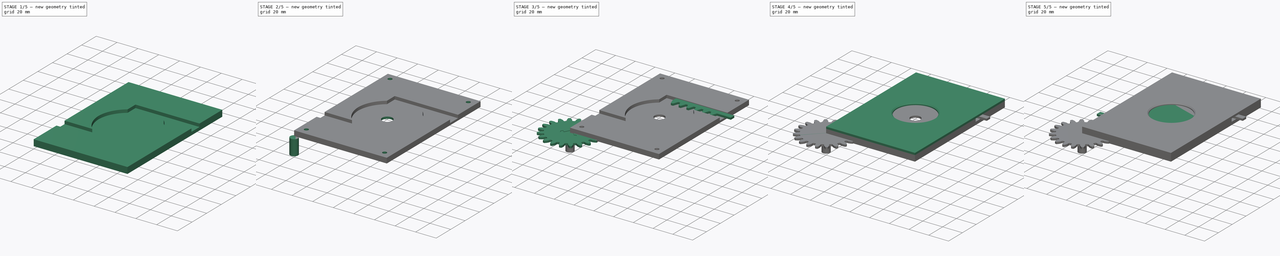
[diagram: build sequence overview — one tinted view per stage of 5, left to right]
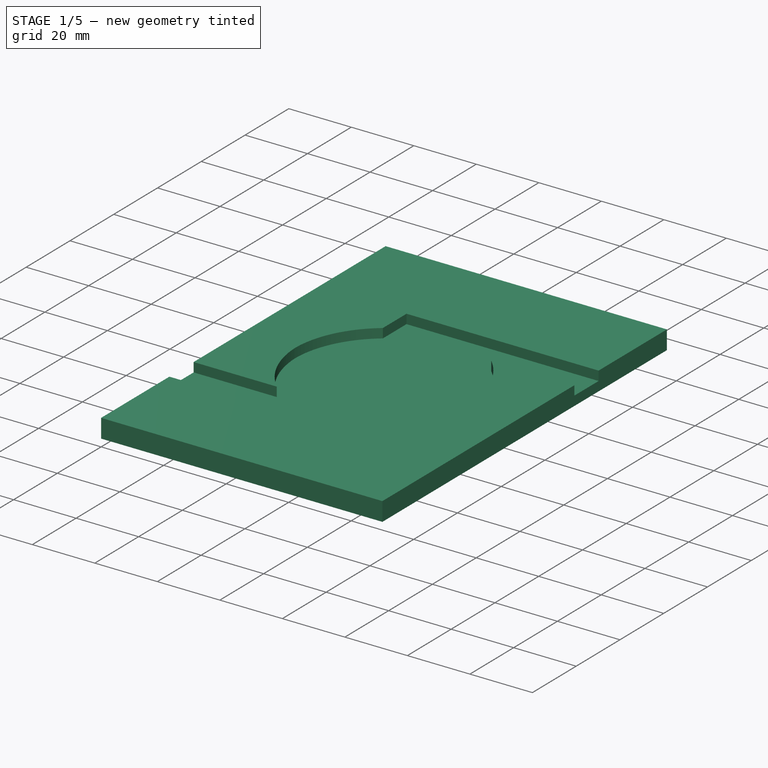
[diagram: stage 1 of 5 — iso view after this stage's code; geometry added in this stage tinted green]
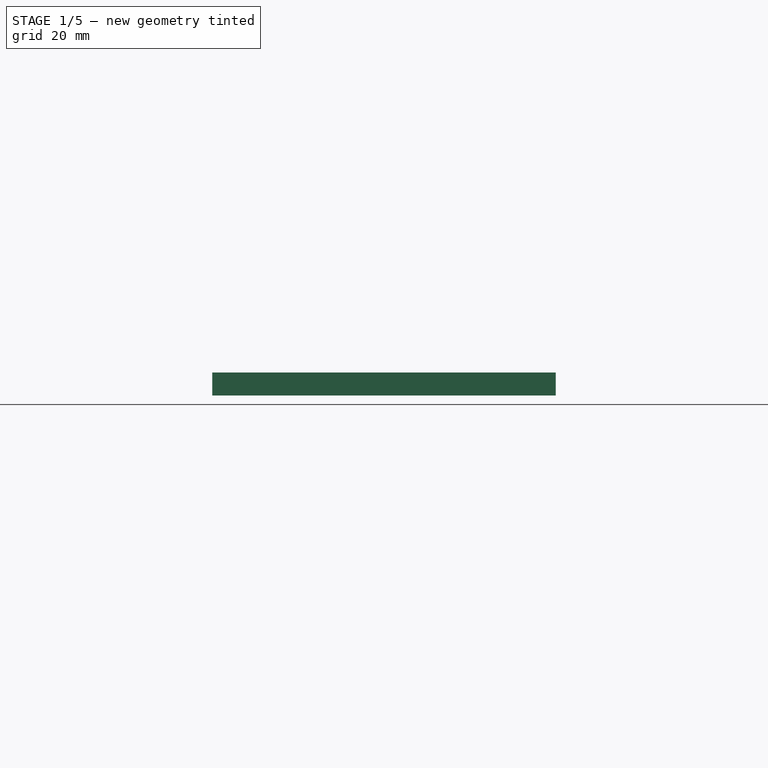
[diagram: stage 1 of 5 — front view after this stage's code; geometry added in this stage tinted green]
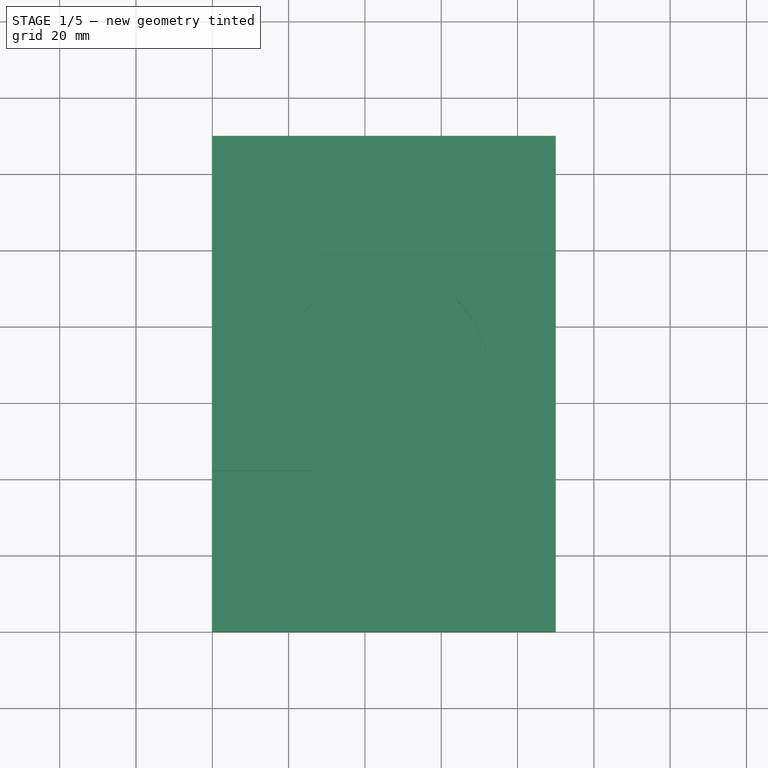
[diagram: stage 1 of 5 — top view after this stage's code; geometry added in this stage tinted green]
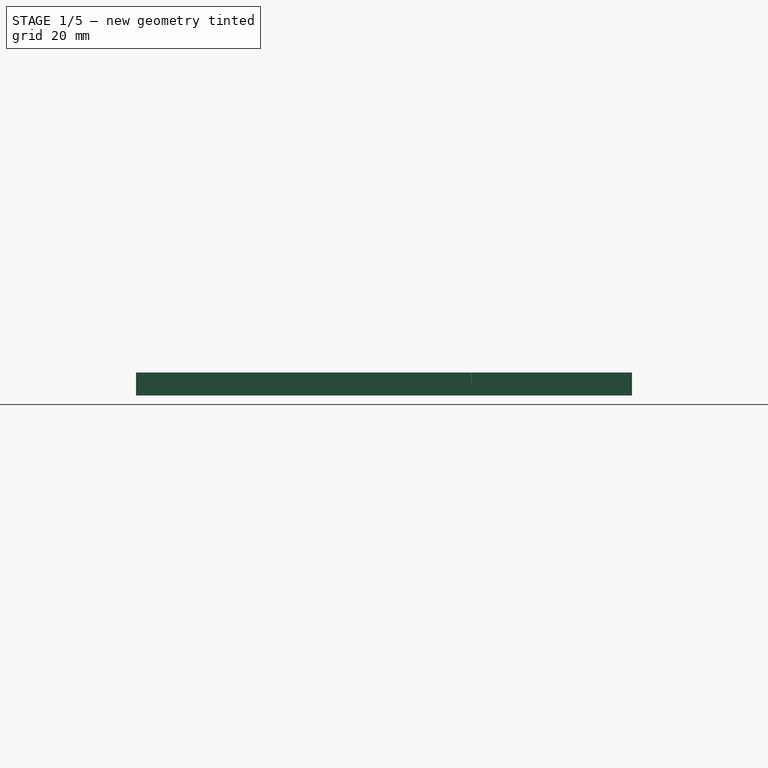
[diagram: stage 1 of 5 — right view after this stage's code; geometry added in this stage tinted green]
FCSTD DOCUMENT  (FreeCAD 0.15R4671 (Git))
Label: Fermetureopv
License: All rights reserved
LicenseURL: http://en.wikipedia.org/wiki/All_rights_reserved
objects: Sketcher::SketchObject×14, PartDesign::Pad×10, PartDesign::Pocket×6, Part::Part2DObjectPython×2, Part::FeaturePython×2, Image::ImagePlane×1, Part::Fuse×1, PartDesign::Chamfer×1
note: 52 computed .brp shape members not serialized (recipe doc carries the construction recipe); baked Part::Feature solids carry a one-line shape summary decoded from their .brp

FEATURE [Sketcher::SketchObject] Sketch
  sketch-geometry (4):
    g0: LineSegment StartX=0 StartY=0 StartZ=0 EndX=90 EndY=0 EndZ=0
    g1: LineSegment StartX=90 StartY=0 StartZ=0 EndX=90 EndY=130 EndZ=0
    g2: LineSegment StartX=90 StartY=130 StartZ=0 EndX=0 EndY=130 EndZ=0
    g3: LineSegment StartX=0 StartY=130 StartZ=0 EndX=0 EndY=0 EndZ=0
  constraints (11):
    c: Coincident(g0,g1)
    c: Coincident(g1,g2)
    c: Coincident(g2,g3)
    c: Coincident(g3,g0)
    c: Horizontal(g0)
    c: Horizontal(g2)
    c: Vertical(g1)
    c: Vertical(g3)
    c: Coincident(g0,g-1)
    c: Distance(g2) = 90
    c: Distance(g3) = 130
FEATURE [PartDesign::Pad] Pad
  Length = 3
  Length2 = 100
  Sketch = -> Sketch
  Type = 0
FEATURE [Sketcher::SketchObject] Sketch004
  Placement = pos=(83.2734,90.9,3.6) rot=(0.57735,0.57735,0.57735;2.0944rad)
  Support = -> InvoluteRack [Face26]
  sketch-geometry (4):
    g0: LineSegment StartX=2.5 StartY=0 StartZ=0 EndX=7.5 EndY=0 EndZ=0
    g1: LineSegment StartX=7.5 StartY=0 StartZ=0 EndX=7.5 EndY=2 EndZ=0
    g2: LineSegment StartX=7.5 StartY=2 StartZ=0 EndX=2.5 EndY=2 EndZ=0
    g3: LineSegment StartX=2.5 StartY=2 StartZ=0 EndX=2.5 EndY=0 EndZ=0
  constraints (12):
    c: Coincident(g0,g1)
    c: Coincident(g1,g2)
    c: Coincident(g2,g3)
    c: Coincident(g3,g0)
    c: Horizontal(g0)
    c: Horizontal(g2)
    c: Vertical(g1)
    c: Vertical(g3)
    c: PointOnObject(g0,g-1)
    c: Distance(g3) = 2
    c: Distance(g2) = 5
    c: Distance(g-1,g0) = 2.5
FEATURE [Sketcher::SketchObject] Sketch005
  Placement = pos=(6.72658,39.2,3.6) rot=(0.57735,-0.57735,-0.57735;2.0944rad)
  Support = -> InvoluteRack001 [Face26]
  sketch-geometry (4):
    g0: LineSegment StartX=2.5 StartY=0 StartZ=0 EndX=7.5 EndY=0 EndZ=0
    g1: LineSegment StartX=7.5 StartY=0 StartZ=0 EndX=7.5 EndY=2 EndZ=0
    g2: LineSegment StartX=7.5 StartY=2 StartZ=0 EndX=2.5 EndY=2 EndZ=0
    g3: LineSegment StartX=2.5 StartY=2 StartZ=0 EndX=2.5 EndY=0 EndZ=0
  constraints (12):
    c: Coincident(g0,g1)
    c: Coincident(g1,g2)
    c: Coincident(g2,g3)
    c: Coincident(g3,g0)
    c: Horizontal(g0)
    c: Horizontal(g2)
    c: Vertical(g1)
    c: Vertical(g3)
    c: PointOnObject(g0,g-1)
    c: Distance(g3) = 2
    c: Distance(g2) = 5
    c: Distance(g-1,g0) = 2.5
FEATURE [Sketcher::SketchObject] Sketch006
  Placement = pos=(0,0,3) rot=(0,0,1;0rad)
  Support = -> Pad [Face6]
  sketch-geometry (12):
    g0: LineSegment StartX=0 StartY=0 StartZ=0 EndX=90 EndY=0 EndZ=0
    g1: LineSegment StartX=90 StartY=0 StartZ=0 EndX=90 EndY=31.2 EndZ=0
    g2: LineSegment StartX=0 StartY=31.2 StartZ=0 EndX=0 EndY=0 EndZ=0
    g3: GeomPoint [constr] X=51.4702 Y=31.1365 Z=0
    g4: GeomPoint [constr] X=61.47 Y=31.2 Z=0
    g5: LineSegment StartX=0 StartY=31.2 StartZ=0 EndX=61.47 EndY=31.2 EndZ=0
    g6: LineSegment StartX=61.47 StartY=31.2 StartZ=0 EndX=61.47 EndY=41.9983 EndZ=0
    g7: GeomPoint [constr] X=73.2419 Y=65.6402 Z=0
    g8: ArcOfCircle CenterX=40.341 CenterY=64.2022 CenterZ=0 NormalX=0 NormalY=0 NormalZ=1 Radius=32.9323 StartAngle=0.0436773 EndAngle=0.795797
    g9: LineSegment StartX=63.3843 StartY=87.7298 StartZ=0 EndX=90 EndY=87.7298 EndZ=0
    g10: LineSegment StartX=90 StartY=87.7298 StartZ=0 EndX=90 EndY=31.2 EndZ=0
    g11: ArcOfCircle CenterX=43.7709 CenterY=65.5629 CenterZ=0 NormalX=0 NormalY=0 NormalZ=1 Radius=29.4711 StartAngle=5.35659 EndAngle=6.28581
  constraints (22):
    c: Coincident(g0,g1)
    c: Coincident(g2,g0)
    c: Horizontal(g0)
    c: Vertical(g1)
    c: Vertical(g2)
    c: Coincident(g0,g-1)
    c: Distance(g0) = 90
    c: Distance(g2) = 31.2
    c: Distance(g3,g4) = 10
    c: Coincident(g5,g2)
    c: Coincident(g5,g4)
    c: Horizontal(g5)
    c: Coincident(g6,g4)
    c: Vertical(g6)
    c: Coincident(g8,g7)
    c: Coincident(g9,g8)
    c: Horizontal(g9)
    c: Coincident(g10,g9)
    c: Coincident(g10,g1)
    c: Vertical(g10)
    c: Coincident(g11,g7)
    c: Coincident(g11,g6)
FEATURE [Sketcher::SketchObject] Sketch008
  Placement = pos=(90,130,3) rot=(0,0,1;3.14159rad)
  sketch-geometry (12):
    g0: LineSegment StartX=0 StartY=0 StartZ=0 EndX=90 EndY=0 EndZ=0
    g1: LineSegment StartX=90 StartY=0 StartZ=0 EndX=90 EndY=31.2 EndZ=0
    g2: LineSegment StartX=0 StartY=31.2 StartZ=0 EndX=0 EndY=0 EndZ=0
    g3: GeomPoint [constr] X=51.4702 Y=31.1365 Z=0
    g4: GeomPoint [constr] X=61.47 Y=31.2 Z=0
    g5: LineSegment StartX=0 StartY=31.2 StartZ=0 EndX=61.47 EndY=31.2 EndZ=0
    g6: LineSegment StartX=61.47 StartY=31.2 StartZ=0 EndX=61.47 EndY=41.9983 EndZ=0
    g7: GeomPoint [constr] X=73.2419 Y=65.6402 Z=0
    g8: ArcOfCircle CenterX=40.341 CenterY=64.2022 CenterZ=0 NormalX=0 NormalY=0 NormalZ=1 Radius=32.9323 StartAngle=0.0436773 EndAngle=0.795797
    g9: LineSegment StartX=63.3843 StartY=87.7298 StartZ=0 EndX=90 EndY=87.7298 EndZ=0
    g10: LineSegment StartX=90 StartY=87.7298 StartZ=0 EndX=90 EndY=31.2 EndZ=0
    g11: ArcOfCircle CenterX=43.7709 CenterY=65.5629 CenterZ=0 NormalX=0 NormalY=0 NormalZ=1 Radius=29.4711 StartAngle=5.35659 EndAngle=6.28581
  constraints (22):
    c: Coincident(g0,g1)
    c: Coincident(g2,g0)
    c: Horizontal(g0)
    c: Vertical(g1)
    c: Vertical(g2)
    c: Coincident(g0,g-1)
    c: Distance(g0) = 90
    c: Distance(g2) = 31.2
    c: Distance(g3,g4) = 10
    c: Coincident(g5,g2)
    c: Coincident(g5,g4)
    c: Horizontal(g5)
    c: Coincident(g6,g4)
    c: Vertical(g6)
    c: Coincident(g8,g7)
    c: Coincident(g9,g8)
    c: Horizontal(g9)
    c: Coincident(g10,g9)
    c: Coincident(g10,g1)
    c: Vertical(g10)
    c: Coincident(g11,g7)
    c: Coincident(g11,g6)
FEATURE [PartDesign::Pad] Pad006
  Length = 3
  Length2 = 100
  Placement = pos=(90,130,3) rot=(0,0,1;3.14159rad)
  Sketch = -> Sketch008
  Type = 0
FEATURE [PartDesign::Pad] Pad007
  Length = 3
  Length2 = 100
  Sketch = -> Sketch006
  Type = 0
FEATURE [Part::Fuse] Fusion
  Base = -> Pad006
  Tool = -> Pad007
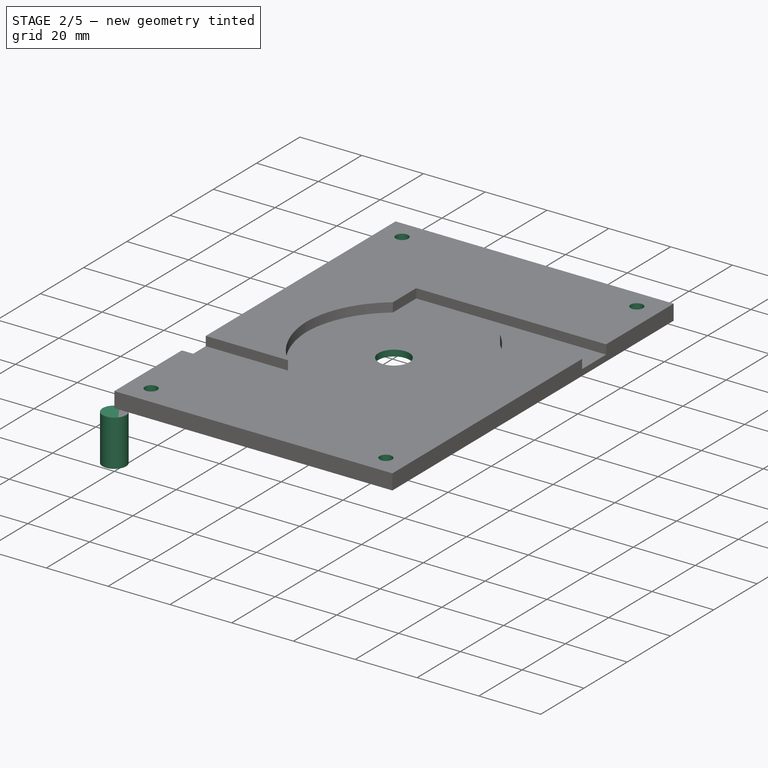
[diagram: stage 2 of 5 — iso view after this stage's code; geometry added in this stage tinted green]
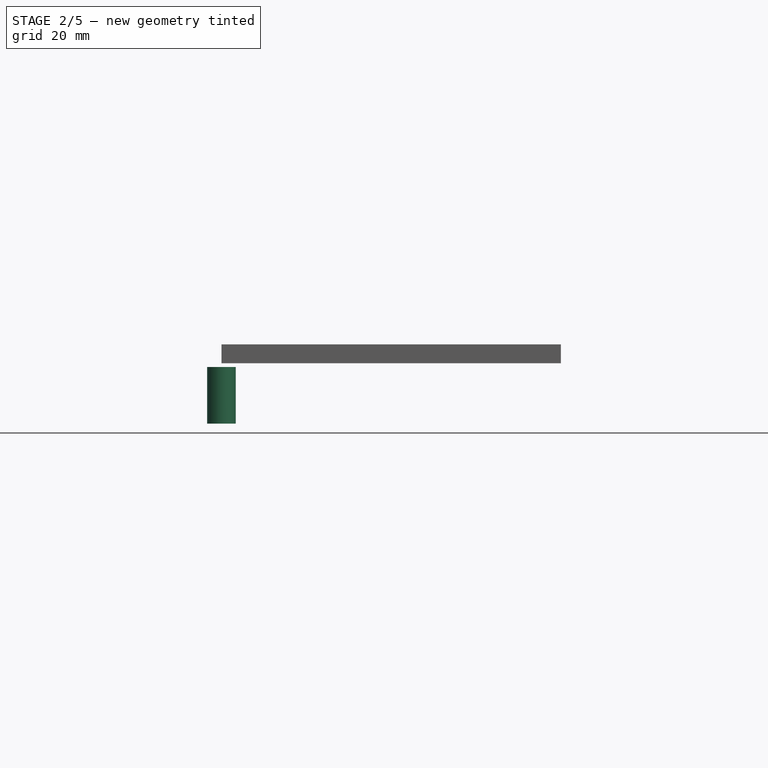
[diagram: stage 2 of 5 — front view after this stage's code; geometry added in this stage tinted green]
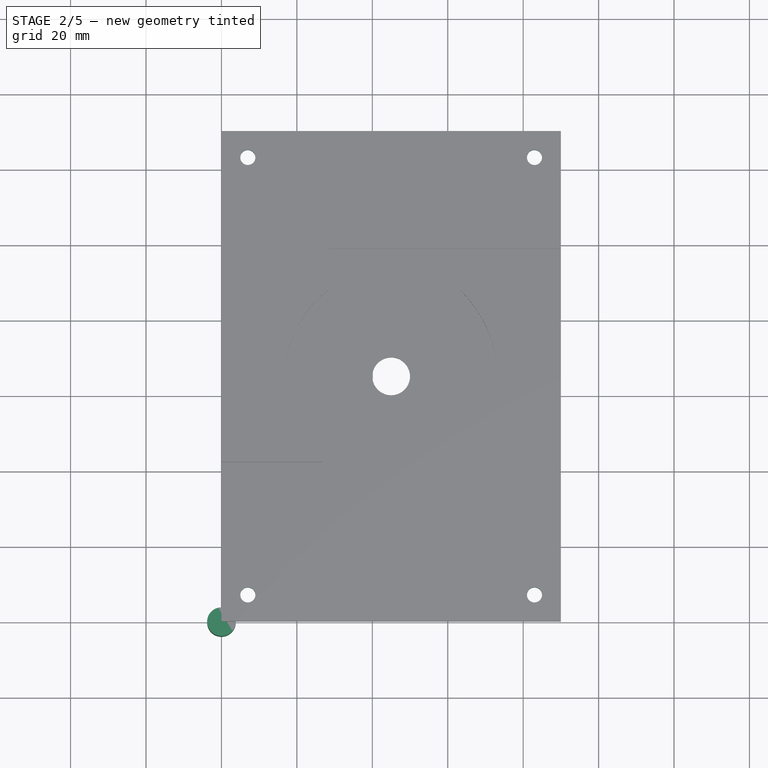
[diagram: stage 2 of 5 — top view after this stage's code; geometry added in this stage tinted green]
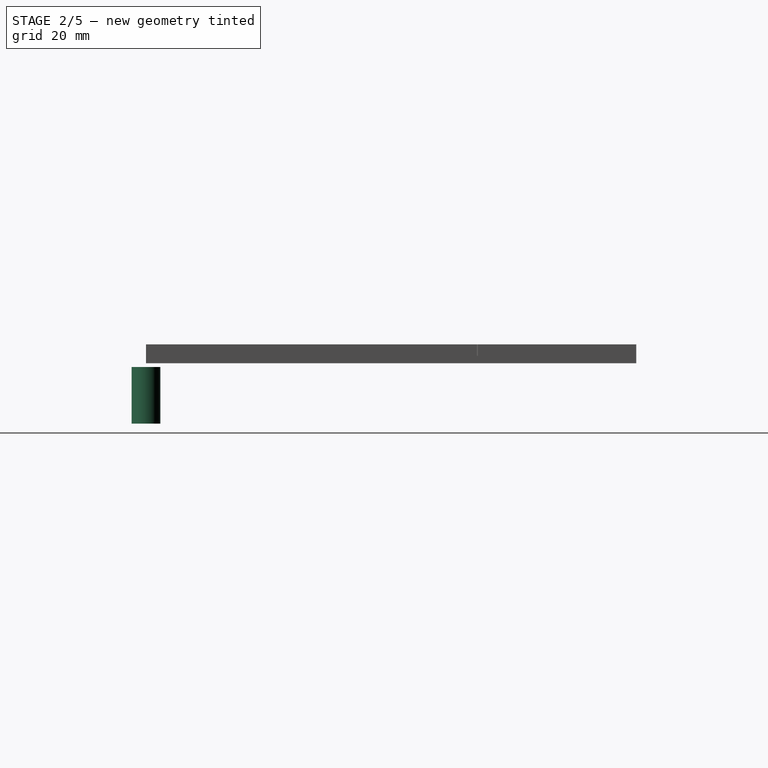
[diagram: stage 2 of 5 — right view after this stage's code; geometry added in this stage tinted green]
FEATURE [Sketcher::SketchObject] Sketch012
  Placement = pos=(0,0,0) rot=(1,0,0;3.14159rad)
  sketch-geometry (1):
    g0: Circle CenterX=0 CenterY=0 CenterZ=0 NormalX=0 NormalY=0 NormalZ=1 Radius=3.79729
  constraints (1):
    c: Coincident(g0,g-1)
FEATURE [Part::Part2DObjectPython] InvoluteGear001  # Draft 2D object (typed FeaturePython)
  ExternalGear = true
  HighPrecision = true
  Modules = 2.5
  NumberOfTeeth = 20
  PressureAngle = 20
FEATURE [PartDesign::Pad] Pad011  label="Pad009"
  Length = 15
  Length2 = 100
  Placement = pos=(0,0,0) rot=(1,0,0;3.14159rad)
  Sketch = -> Sketch012
  Type = 0
FEATURE [Sketcher::SketchObject] Sketch013
  Placement = pos=(0,0,-15) rot=(1,0,0;3.14159rad)
  Support = -> Pad011 [Face3]
  sketch-geometry (6):
    g0: LineSegment StartX=-2 StartY=-2.18197 StartZ=0 EndX=2 EndY=-2.18197 EndZ=0
    g1: LineSegment StartX=2 StartY=-2.18197 StartZ=0 EndX=2 EndY=1.81803 EndZ=0
    g2: LineSegment StartX=2 StartY=1.81803 StartZ=0 EndX=-2 EndY=1.81803 EndZ=0
    g3: LineSegment StartX=-2 StartY=1.81803 StartZ=0 EndX=-2 EndY=-2.18197 EndZ=0
    g4: GeomPoint [constr] X=-2 Y=0 Z=0
    g5: GeomPoint [constr] X=2 Y=0 Z=0
  constraints (15):
    c: Coincident(g0,g1)
    c: Coincident(g1,g2)
    c: Coincident(g2,g3)
    c: Coincident(g3,g0)
    c: Horizontal(g0)
    c: Horizontal(g2)
    c: Vertical(g1)
    c: Vertical(g3)
    c: PointOnObject(g4,g3)
    c: PointOnObject(g4,g-1)
    c: PointOnObject(g5,g1)
    c: PointOnObject(g5,g-1)
    c: Distance(g-1,g4) = 2
    c: Distance(g-1,g5) = 2
    c: Distance(g3) = 4
FEATURE [PartDesign::Pocket] Pocket003
  Length = 6
  Placement = pos=(0,0,0) rot=(1,0,0;3.14159rad)
  Sketch = -> Sketch013
  Type = 0
FEATURE [Sketcher::SketchObject] Sketch014
  Placement = pos=(0,0,0) rot=(1,0,0;3.14159rad)
  Support = -> Fusion [Face21]
  sketch-geometry (5):
    g0: Circle CenterX=45 CenterY=-65 CenterZ=0 NormalX=0 NormalY=0 NormalZ=1 Radius=5
    g1: Circle CenterX=7 CenterY=-7 CenterZ=0 NormalX=0 NormalY=0 NormalZ=1 Radius=2
    g2: Circle CenterX=7 CenterY=-123 CenterZ=0 NormalX=0 NormalY=0 NormalZ=1 Radius=2
    g3: Circle CenterX=83 CenterY=-123 CenterZ=0 NormalX=0 NormalY=0 NormalZ=1 Radius=2
    g4: Circle CenterX=83 CenterY=-7 CenterZ=0 NormalX=0 NormalY=0 NormalZ=1 Radius=2
  constraints (15):
    c: Radius(g0) = 5
    c: DistanceX(g-2,g0) = 45
    c: DistanceY(g-1,g0) = -65
    c: Radius(g1) = 2
    c: DistanceY(g-1,g1) = -7
    c: DistanceX(g-2,g1) = 7
    c: DistanceY(g-1,g2) = -123
    c: DistanceX(g-2,g2) = 7
    c: Radius(g2) = 2
    c: Radius(g3) = 2
    c: DistanceY(g-1,g3) = -123
    c: DistanceX(g-2,g3) = 83
    c: Radius(g4) = 2
    c: DistanceX(g-2,g4) = 83
    c: DistanceY(g-1,g4) = -7
FEATURE [PartDesign::Pocket] Pocket004
  Length = 10
  Sketch = -> Sketch014
  Type = 0
FEATURE [Sketcher::SketchObject] Sketch015
  Placement = pos=(0,0,0) rot=(0.57735,-0.57735,-0.57735;2.0944rad)
  Support = -> Pocket004 [Face16]
  sketch-geometry (4):
    g0: LineSegment StartX=0 StartY=0 StartZ=0 EndX=-131.133 EndY=0 EndZ=0
    g1: LineSegment StartX=-131.133 StartY=0 StartZ=0 EndX=-131.133 EndY=1 EndZ=0
    g2: LineSegment StartX=-131.133 StartY=1 StartZ=0 EndX=0 EndY=1 EndZ=0
    g3: LineSegment StartX=0 StartY=1 StartZ=0 EndX=0 EndY=0 EndZ=0
  constraints (10):
    c: Coincident(g0,g1)
    c: Coincident(g1,g2)
    c: Coincident(g2,g3)
    c: Coincident(g3,g0)
    c: Horizontal(g0)
    c: Horizontal(g2)
    c: Vertical(g1)
    c: Vertical(g3)
    c: Coincident(g0,g-1)
    c: Distance(g1) = 1
FEATURE [PartDesign::Pocket] Pocket005
  Length = 100
  Sketch = -> Sketch015
  Type = 0
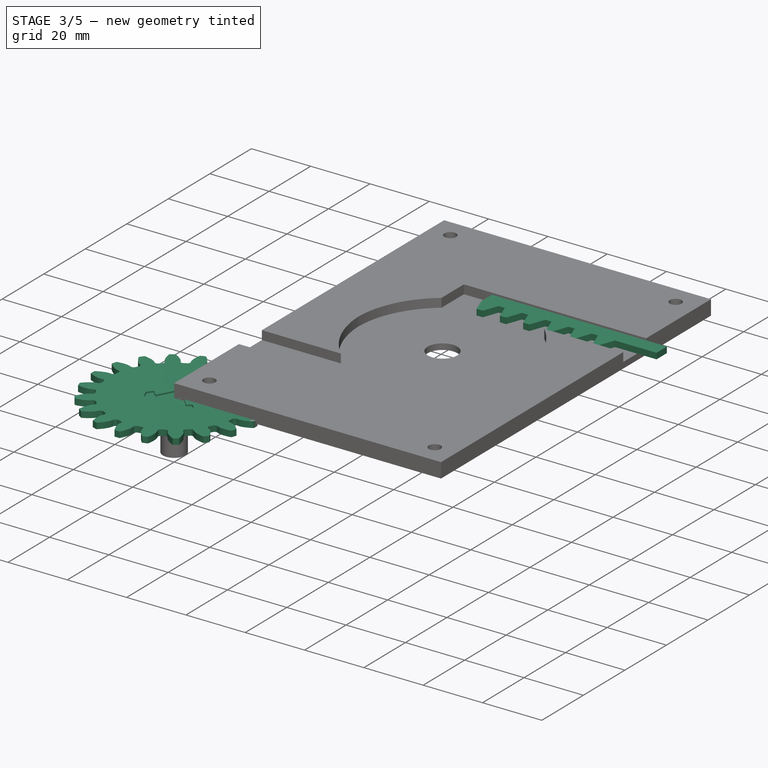
[diagram: stage 3 of 5 — iso view after this stage's code; geometry added in this stage tinted green]
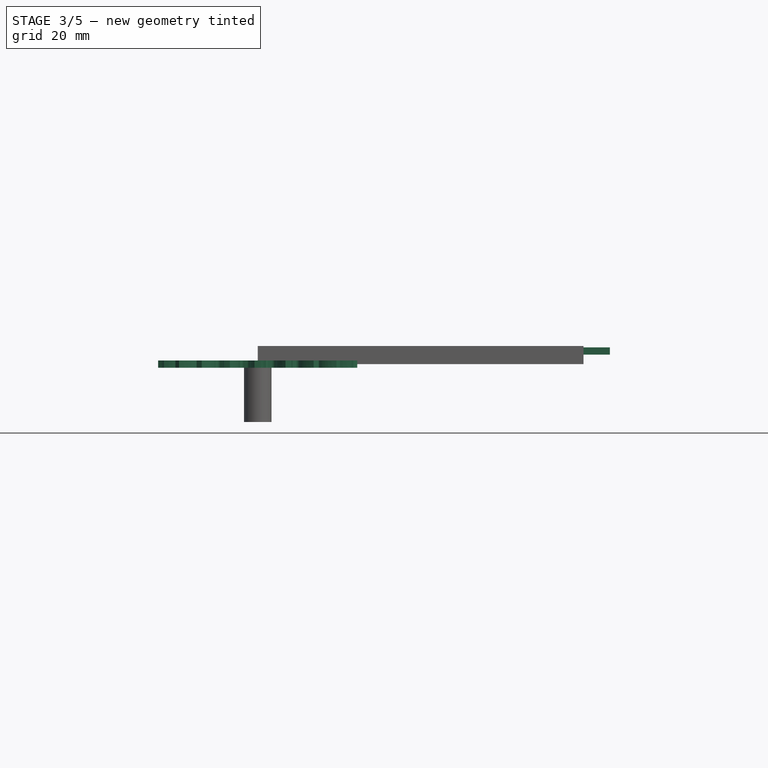
[diagram: stage 3 of 5 — front view after this stage's code; geometry added in this stage tinted green]
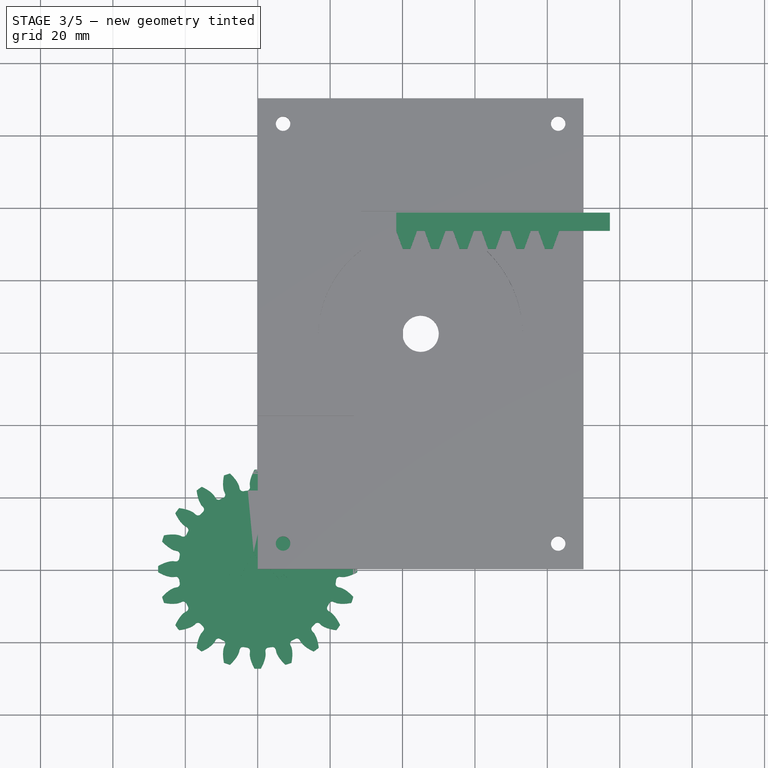
[diagram: stage 3 of 5 — top view after this stage's code; geometry added in this stage tinted green]
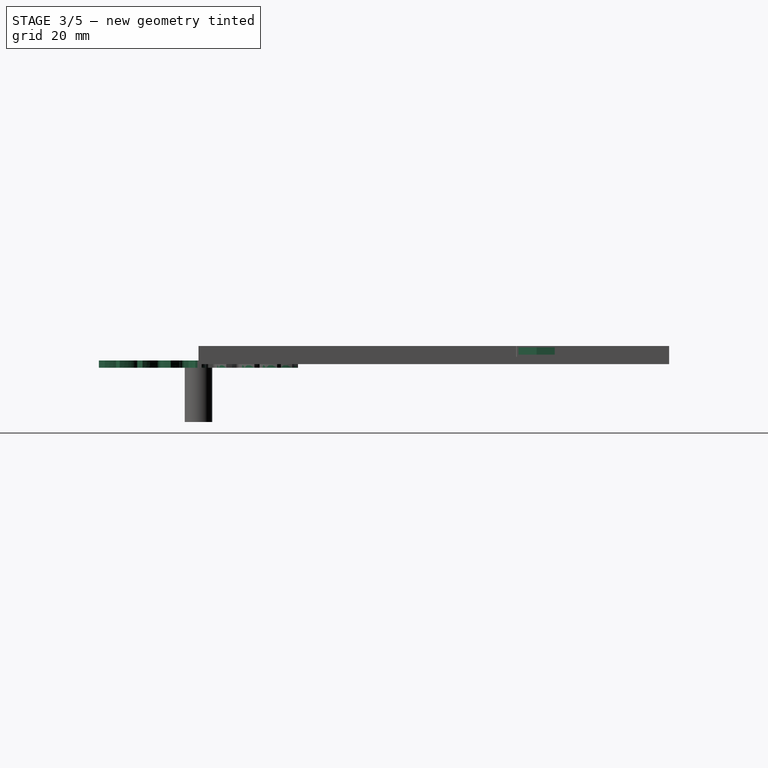
[diagram: stage 3 of 5 — right view after this stage's code; geometry added in this stage tinted green]
FEATURE [Part::Part2DObjectPython] InvoluteGear  # Draft 2D object (typed FeaturePython)
  ExternalGear = true
  HighPrecision = true
  Modules = 2.5
  NumberOfTeeth = 20
  PressureAngle = 20
FEATURE [PartDesign::Pad] Pad002
  Length = 2
  Length2 = 100
  Sketch = -> InvoluteGear
  Type = 0
FEATURE [Image::ImagePlane] ImagePlane
  Placement = pos=(45,65,5.2) rot=(0,0,1;0rad)
  XSize = 20
  YSize = 20
FEATURE [Sketcher::SketchObject] Sketch003
  Placement = pos=(0,0,2) rot=(0,0,1;0rad)
  Support = -> Pad002 [Face202]
  sketch-geometry (9):
    g0: LineSegment StartX=-7.9868 StartY=-1.98657 StartZ=0 EndX=-6.66447 EndY=-0.274899 EndZ=0
    g1: LineSegment StartX=-4.78694 StartY=-2.16681 StartZ=0 EndX=-6.66447 EndY=-0.274899 EndZ=0
    g2: LineSegment StartX=-1.12357 StartY=4.64852 StartZ=0 EndX=-4.78694 EndY=-2.16681 EndZ=0
    g3: LineSegment StartX=-1.12357 StartY=4.64852 StartZ=0 EndX=1.87294 EndY=-0.307575 EndZ=0
    g4: LineSegment StartX=1.87294 StartY=-0.307575 StartZ=0 EndX=3.1176 EndY=0.419384 EndZ=0
    g5: LineSegment StartX=3.1176 StartY=0.419384 StartZ=0 EndX=5.8111 EndY=-2.62866 EndZ=0
    g6: LineSegment StartX=5.8111 StartY=-2.62866 StartZ=0 EndX=7.1015 EndY=-1.54711 EndZ=0
    g7: LineSegment StartX=7.1015 StartY=-1.54711 StartZ=0 EndX=8.55327 EndY=-2.61991 EndZ=0
    g8: ArcOfCircle CenterX=0.381291 CenterY=0.257584 CenterZ=0 NormalX=0 NormalY=0 NormalZ=1 Radius=8.66379 StartAngle=3.40361 EndAngle=5.94463
  constraints (9):
    c: Coincident(g1,g0)
    c: Coincident(g2,g1)
    c: Coincident(g3,g2)
    c: Coincident(g4,g3)
    c: Coincident(g5,g4)
    c: Coincident(g6,g5)
    c: Coincident(g7,g6)
    c: Coincident(g8,g0)
    c: Coincident(g8,g7)
FEATURE [Part::FeaturePython] InvoluteRack  # WARN: FeaturePython — macro-defined, semantics opaque (R4)
  Placement = pos=(80.4,90.9,3.6) rot=(0,0,1;1.5708rad)
  height = 2
  module = 2.5
  pressure_angle = 20
  teeth = 5
  thickness = 5
FEATURE [PartDesign::Pad] Pad013  label="Pad004"
  Length = 14
  Length2 = 100
  Placement = pos=(80.4,90.9,3.6) rot=(0,0,1;1.5708rad)
  Sketch = -> Sketch004
  Type = 0
FEATURE [PartDesign::Pocket] Pocket002
  Length = 0.5
  Sketch = -> Sketch003
  Type = 0
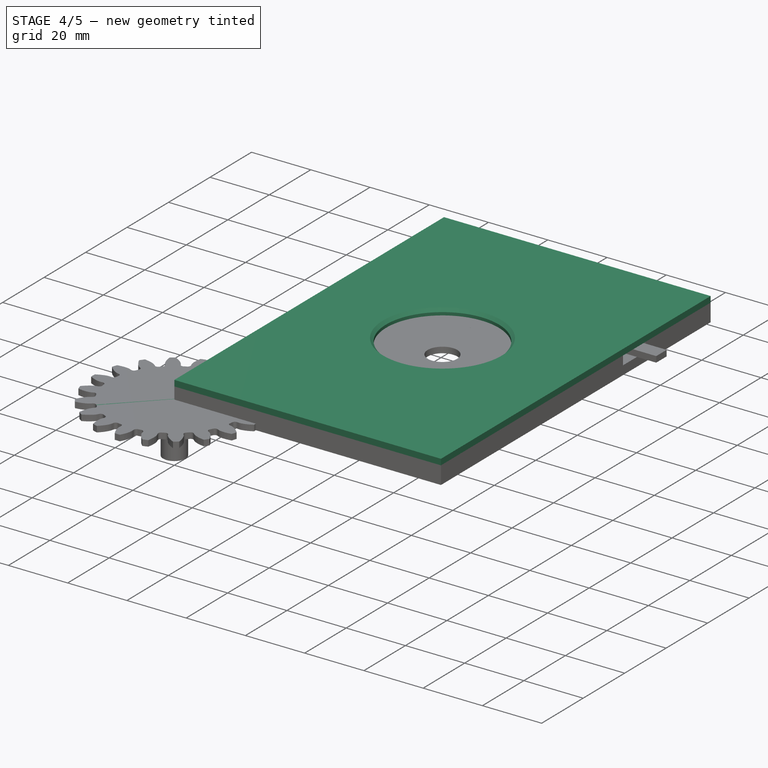
[diagram: stage 4 of 5 — iso view after this stage's code; geometry added in this stage tinted green]
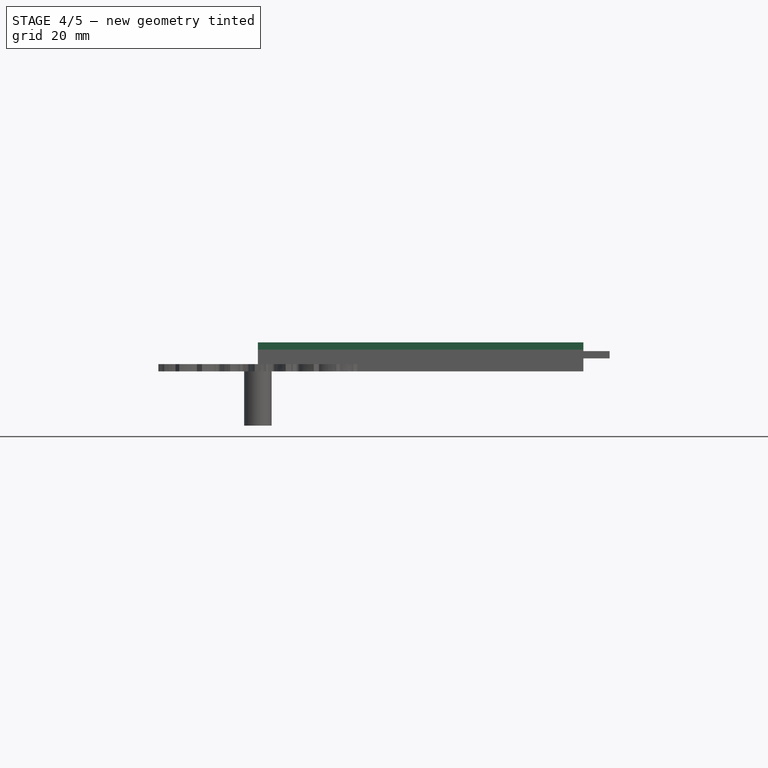
[diagram: stage 4 of 5 — front view after this stage's code; geometry added in this stage tinted green]
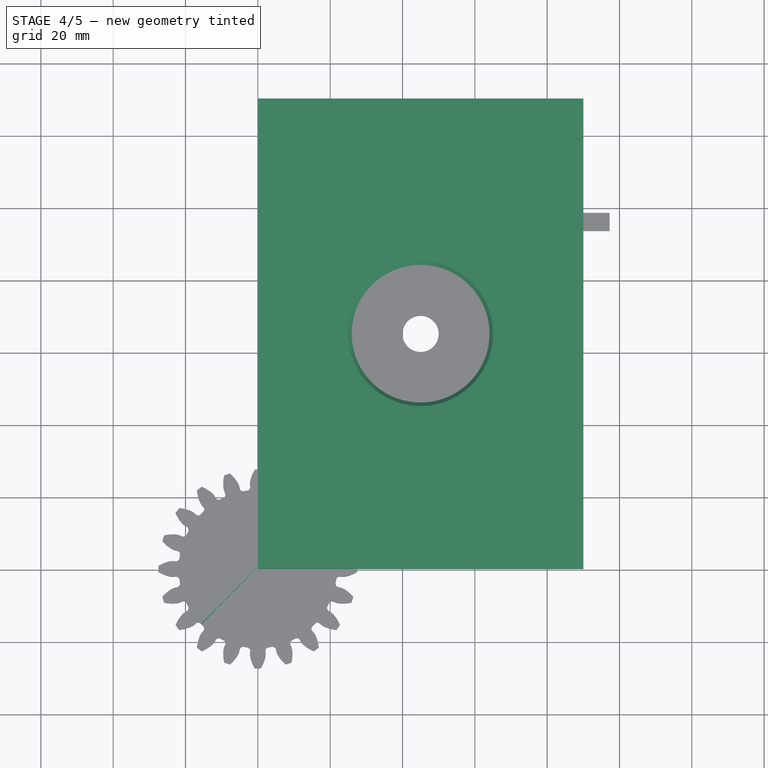
[diagram: stage 4 of 5 — top view after this stage's code; geometry added in this stage tinted green]
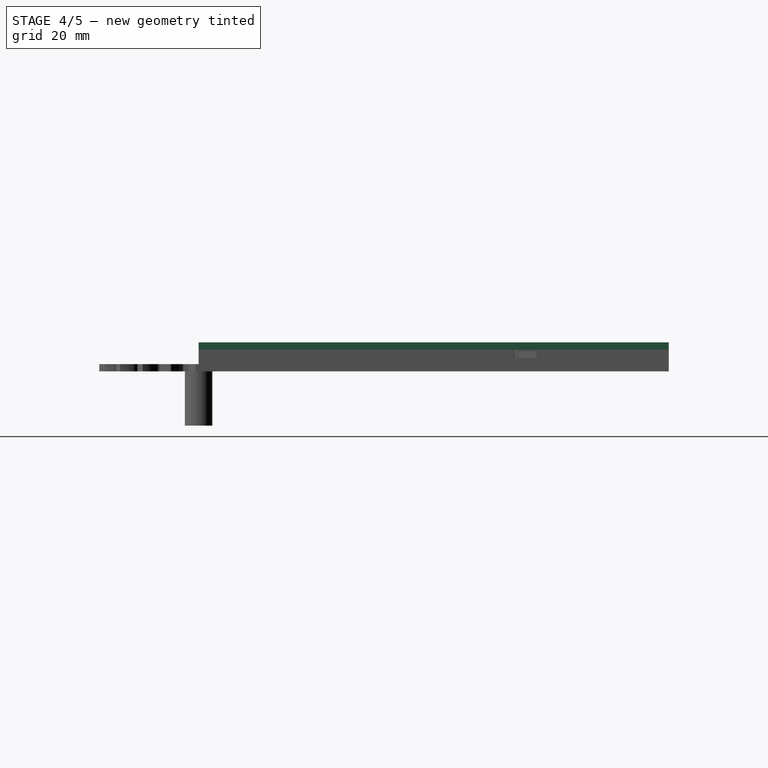
[diagram: stage 4 of 5 — right view after this stage's code; geometry added in this stage tinted green]
FEATURE [Sketcher::SketchObject] Sketch009
  Placement = pos=(0,0,6) rot=(0,0,1;0rad)
  Support = -> Fusion [Face25]
  sketch-geometry (4):
    g0: LineSegment StartX=0 StartY=0 StartZ=0 EndX=90 EndY=0 EndZ=0
    g1: LineSegment StartX=90 StartY=0 StartZ=0 EndX=90 EndY=130 EndZ=0
    g2: LineSegment StartX=90 StartY=130 StartZ=0 EndX=0 EndY=130 EndZ=0
    g3: LineSegment StartX=0 StartY=130 StartZ=0 EndX=0 EndY=0 EndZ=0
  constraints (11):
    c: Coincident(g0,g1)
    c: Coincident(g1,g2)
    c: Coincident(g2,g3)
    c: Coincident(g3,g0)
    c: Horizontal(g0)
    c: Horizontal(g2)
    c: Vertical(g1)
    c: Vertical(g3)
    c: Coincident(g0,g-1)
    c: Distance(g0) = 90
    c: Distance(g1) = 130
FEATURE [PartDesign::Pad] Pad008
  Length = 2
  Length2 = 100
  Sketch = -> Sketch009
  Type = 0
FEATURE [Sketcher::SketchObject] Sketch010
  Placement = pos=(0,0,8) rot=(0,0,1;0rad)
  Support = -> Pad008 [Face1]
  sketch-geometry (4):
    g0: Circle CenterX=45 CenterY=65 CenterZ=0 NormalX=0 NormalY=0 NormalZ=1 Radius=19.042
    g1: GeomPoint [constr] X=55.5098 Y=80.879 Z=0
    g2: GeomPoint [constr] X=45 Y=0 Z=0
    g3: GeomPoint [constr] X=0 Y=65 Z=0
  constraints (7):
    c: PointOnObject(g1,g0)
    c: PointOnObject(g2,g-1)
    c: Distance(g-1,g2) = 45
    c: PointOnObject(g3,g-2)
    c: Distance(g-1,g3) = 65
    c: Distance(g0,g3) = 45
    c: Distance(g0,g2) = 65
FEATURE [PartDesign::Pocket] Pocket
  Length = 10
  Sketch = -> Sketch010
  Type = 0
FEATURE [PartDesign::Chamfer] Chamfer
  Base = -> Pocket [Edge5]
  Size = 1
FEATURE [PartDesign::Pad] Pad012  label="Pad010"
  Length = 2
  Length2 = 100
  Sketch = -> InvoluteGear001
  Type = 0
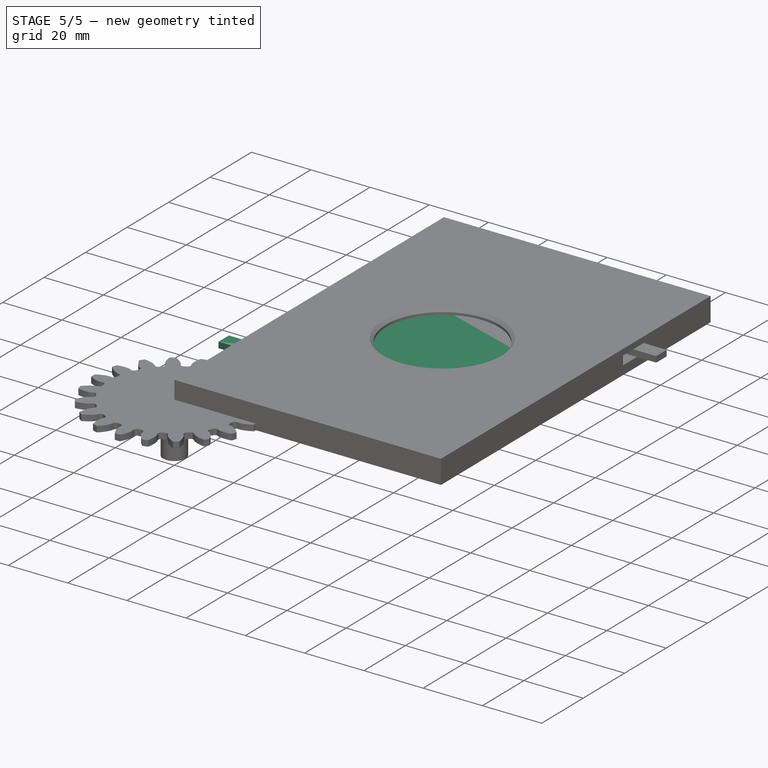
[diagram: stage 5 of 5 — iso view after this stage's code; geometry added in this stage tinted green]
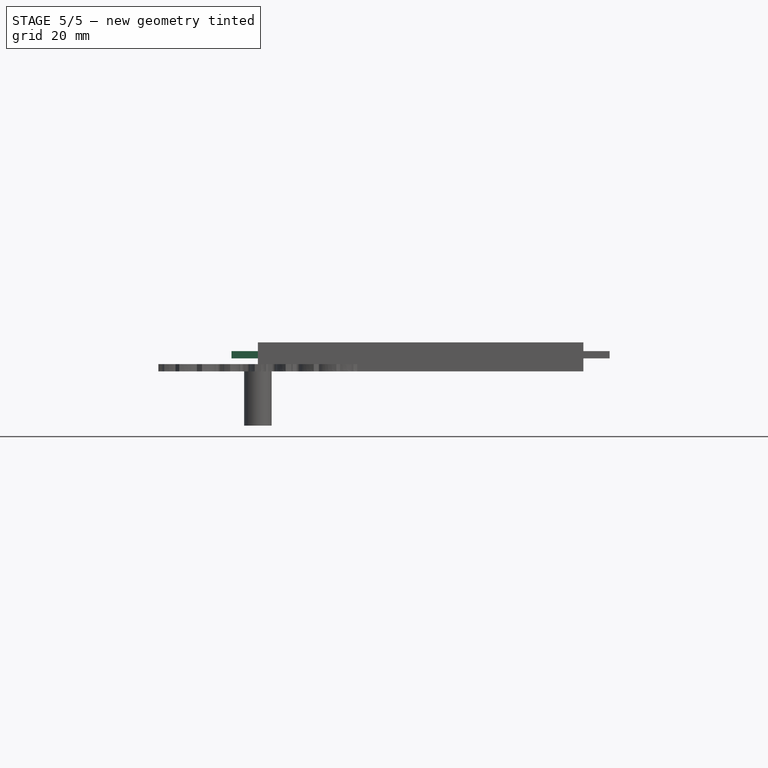
[diagram: stage 5 of 5 — front view after this stage's code; geometry added in this stage tinted green]
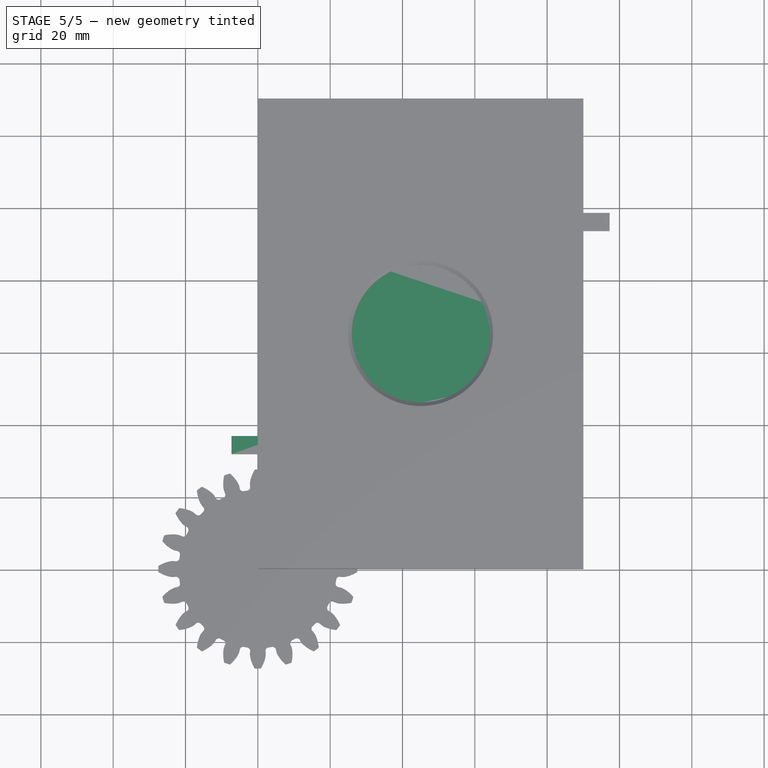
[diagram: stage 5 of 5 — top view after this stage's code; geometry added in this stage tinted green]
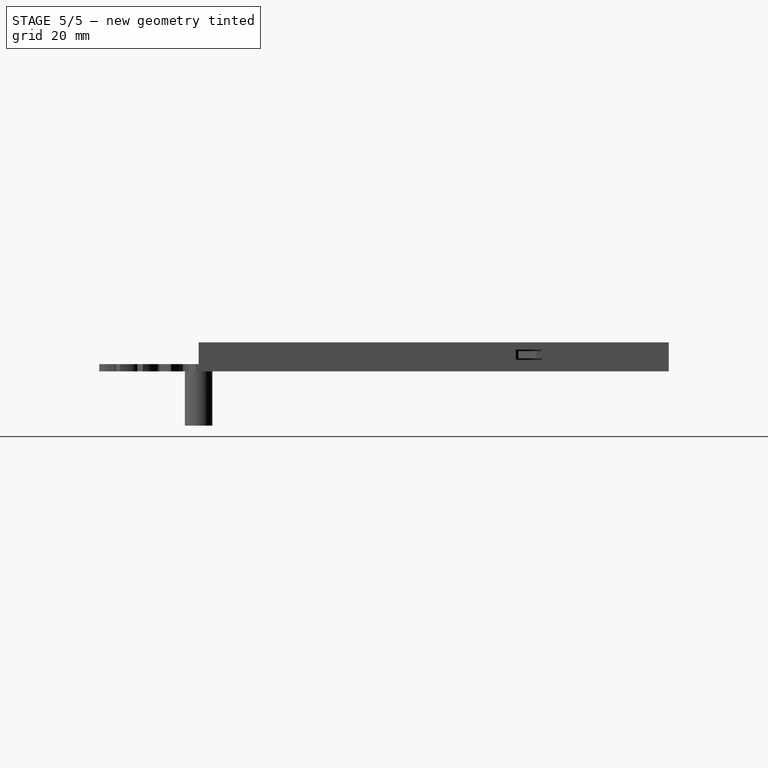
[diagram: stage 5 of 5 — right view after this stage's code; geometry added in this stage tinted green]
FEATURE [Sketcher::SketchObject] Sketch001
  Placement = pos=(0,0,3.2) rot=(0,0,1;0rad)
  sketch-geometry (4):
    g0: Circle CenterX=45 CenterY=65 CenterZ=0 NormalX=0 NormalY=0 NormalZ=1 Radius=30
    g1: GeomPoint [constr] X=40.0514 Y=94.589 Z=0
    g2: GeomPoint [constr] X=0 Y=65 Z=0
    g3: GeomPoint [constr] X=45 Y=0 Z=0
  constraints (8):
    c: PointOnObject(g1,g0)
    c: Distance(g1,g0) = 30
    c: PointOnObject(g2,g-2)
    c: Distance(g-1,g2) = 65
    c: Distance(g2,g0) = 45
    c: PointOnObject(g3,g-1)
    c: Distance(g-1,g3) = 45
    c: Distance(g0,g3) = 65
FEATURE [PartDesign::Pad] Pad001
  Length = 3
  Length2 = 100
  Placement = pos=(0,0,3.2) rot=(0,0,1;0rad)
  Sketch = -> Sketch001
  Type = 0
FEATURE [Part::FeaturePython] InvoluteRack001  # WARN: FeaturePython — macro-defined, semantics opaque (R4)
  Placement = pos=(9.6,39.2,3.6) rot=(0,0,-1;1.5708rad)
  height = 2
  module = 2.5
  pressure_angle = 20
  teeth = 5
  thickness = 5
FEATURE [PartDesign::Pad] Pad005
  Length = 14
  Length2 = 100
  Placement = pos=(9.6,39.2,3.6) rot=(0,0,-1;1.5708rad)
  Sketch = -> Sketch005
  Type = 0
FEATURE [Sketcher::SketchObject] Sketch011
  Placement = pos=(0,0,0) rot=(1,0,0;1.5708rad)
  Support = -> Chamfer [Face8]
  sketch-geometry (4):
    g0: LineSegment StartX=0 StartY=2.01137 StartZ=0 EndX=90 EndY=2.01137 EndZ=0
    g1: LineSegment StartX=90 StartY=2.01137 StartZ=0 EndX=90 EndY=6.01137 EndZ=0
    g2: LineSegment StartX=90 StartY=6.01137 StartZ=0 EndX=0 EndY=6.01137 EndZ=0
    g3: LineSegment StartX=0 StartY=6.01137 StartZ=0 EndX=0 EndY=2.01137 EndZ=0
  constraints (11):
    c: Coincident(g0,g1)
    c: Coincident(g1,g2)
    c: Coincident(g2,g3)
    c: Coincident(g3,g0)
    c: Horizontal(g0)
    c: Horizontal(g2)
    c: Vertical(g1)
    c: Vertical(g3)
    c: PointOnObject(g0,g-2)
    c: Distance(g2) = 90
    c: Distance(g1) = 4
FEATURE [PartDesign::Pocket] Pocket001
  Length = 5
  Sketch = -> Sketch011
  Type = 0
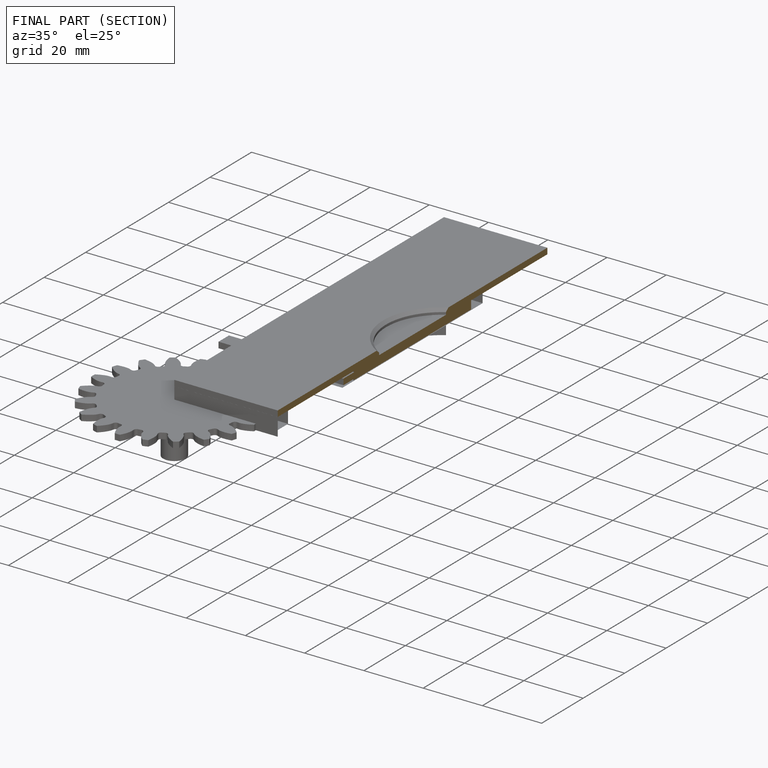
[diagram: finished part — half-section view (interior)]
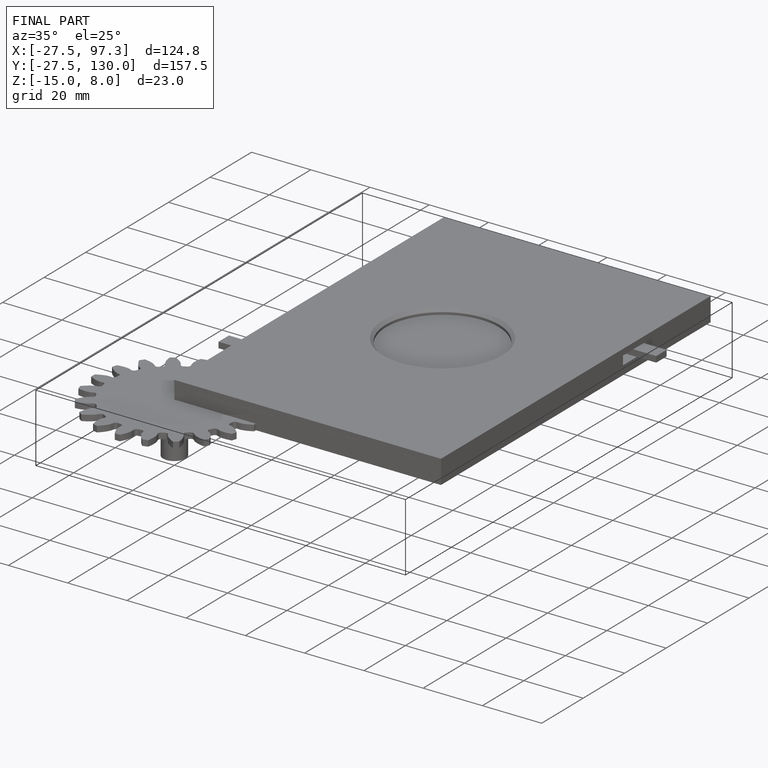
[diagram: finished part — iso view with bounding-box wireframe]
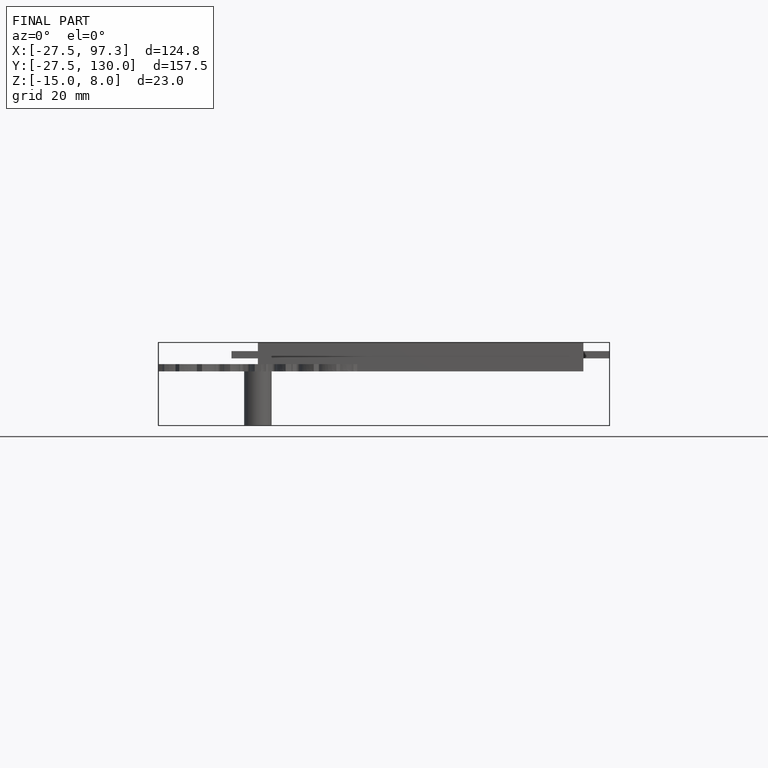
[diagram: finished part — front view with bounding-box wireframe]
